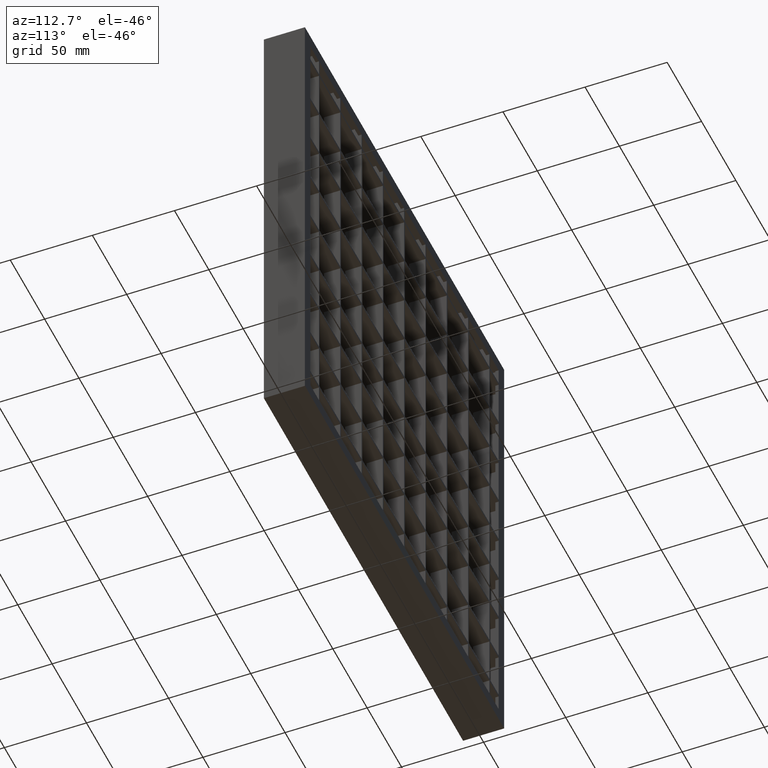
[diagram: clean part render]
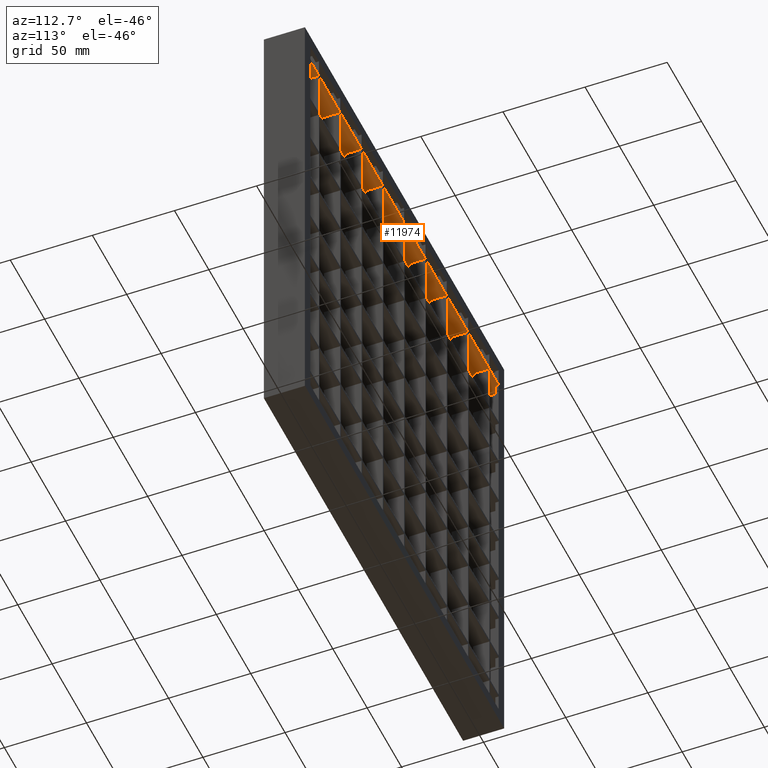
[diagram: same view with one face highlighted and labeled with its STEP entity id]
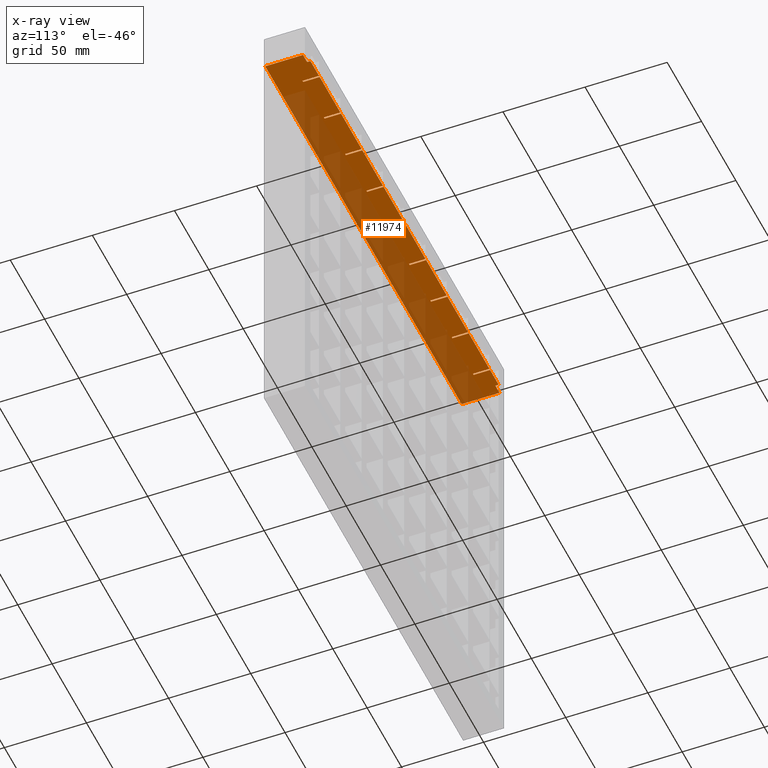
[diagram: x-ray of the same camera — body ghosted, the highlighted face saturated]
A machine part, auxiliary view. The second image highlights one B-rep face of the part: STEP entity #11974.
The next image is the same camera in x-ray: the body ghosted, the highlighted face saturated — about 51% of this face is hidden behind the body in this view.
In plain terms, the highlighted planar face has unit normal (0, 0, -1).
Its self-contained STEP definition (entity closure, byte-faithful):
#117 = VERTEX_POINT ( 'NONE', #4913 ) ;
#144 = EDGE_CURVE ( 'NONE', #7752, #800, #14673, .T. ) ;
#268 = VECTOR ( 'NONE', #5159, 1000.000000000000000 ) ;
#314 = VECTOR ( 'NONE', #2611, 1000.000000000000000 ) ;
#354 = CARTESIAN_POINT ( 'NONE',  ( 282.0000000000000600, 10.50000000000019200, -19.75000000000037700 ) ) ;
#358 = LINE ( 'NONE', #5284, #9730 ) ;
#437 = DIRECTION ( 'NONE',  ( -1.000000000000000000, -4.336808689942014300E-016, 0.0000000000000000000 ) ) ;
#465 = EDGE_CURVE ( 'NONE', #6913, #5337, #5865, .T. ) ;
#579 = CARTESIAN_POINT ( 'NONE',  ( 313.0449595727364500, 2.500000000000128800, -19.75000000000037700 ) ) ;
#600 = CARTESIAN_POINT ( 'NONE',  ( 51.49999999999996400, 2.500000000000001800, -19.75000000000037700 ) ) ;
#608 = EDGE_CURVE ( 'NONE', #13409, #4346, #4748, .T. ) ;
#660 = VERTEX_POINT ( 'NONE', #15419 ) ;
#662 = DIRECTION ( 'NONE',  ( 8.673617379884037400E-016, 1.000000000000000000, 0.0000000000000000000 ) ) ;
#721 = CARTESIAN_POINT ( 'NONE',  ( 238.5000000000001700, -12.49999999999987700, -19.75000000000037700 ) ) ;
#736 = EDGE_CURVE ( 'NONE', #4158, #878, #8657, .T. ) ;
#800 = VERTEX_POINT ( 'NONE', #3779 ) ;
#824 = CARTESIAN_POINT ( 'NONE',  ( 313.0449595727364500, 12.50000000000012400, -19.75000000000037700 ) ) ;
#878 = VERTEX_POINT ( 'NONE', #6270 ) ;
#949 = CARTESIAN_POINT ( 'NONE',  ( 114.4999999999999600, 2.500000000000002200, -19.75000000000037700 ) ) ;
#964 = DIRECTION ( 'NONE',  ( -1.000000000000000000, 0.0000000000000000000, 0.0000000000000000000 ) ) ;
#990 = CARTESIAN_POINT ( 'NONE',  ( 288.0000000000001100, -12.49999999999987700, -19.75000000000037700 ) ) ;
#1012 = DIRECTION ( 'NONE',  ( 1.000000000000000000, -4.336808689942014300E-016, 0.0000000000000000000 ) ) ;
#1013 = PLANE ( 'NONE',  #1985 ) ;
#1043 = VECTOR ( 'NONE', #2432, 1000.000000000000000 ) ;
#1047 = EDGE_CURVE ( 'NONE', #11251, #9433, #7549, .T. ) ;
#1114 = CARTESIAN_POINT ( 'NONE',  ( 113.4999999999999600, -12.49999999999987700, -19.75000000000037700 ) ) ;
#1120 = DIRECTION ( 'NONE',  ( 1.000000000000000000, 0.0000000000000000000, 0.0000000000000000000 ) ) ;
#1131 = CARTESIAN_POINT ( 'NONE',  ( 268.5000000000001100, 12.50000000000000200, -19.75000000000037700 ) ) ;
#1141 = EDGE_CURVE ( 'NONE', #2159, #3115, #9804, .T. ) ;
#1147 = VECTOR ( 'NONE', #11560, 1000.000000000000000 ) ;
#1157 = ORIENTED_EDGE ( 'NONE', *, *, #1141, .F. ) ;
#1218 = VECTOR ( 'NONE', #14302, 1000.000000000000000 ) ;
#1266 = CARTESIAN_POINT ( 'NONE',  ( 21.49999999999996400, 2.500000000000002200, -19.75000000000037700 ) ) ;
#1283 = EDGE_CURVE ( 'NONE', #12223, #8841, #11441, .T. ) ;
#1296 = DIRECTION ( 'NONE',  ( -1.000000000000000000, -3.061616997868382600E-016, 0.0000000000000000000 ) ) ;
#1353 = CARTESIAN_POINT ( 'NONE',  ( 176.5000000000001100, -12.49999999999987700, -19.75000000000037700 ) ) ;
#1384 = VECTOR ( 'NONE', #662, 1000.000000000000000 ) ;
#1471 = VECTOR ( 'NONE', #10621, 1000.000000000000000 ) ;
#1563 = LINE ( 'NONE', #15091, #15233 ) ;
#1638 = CARTESIAN_POINT ( 'NONE',  ( 206.5000000000001100, 12.50000000000000200, -19.75000000000037700 ) ) ;
#1642 = EDGE_CURVE ( 'NONE', #11677, #5337, #12729, .T. ) ;
#1646 = LINE ( 'NONE', #1353, #13963 ) ;
#1751 = VERTEX_POINT ( 'NONE', #11565 ) ;
#1777 = VERTEX_POINT ( 'NONE', #12759 ) ;
#1806 = EDGE_CURVE ( 'NONE', #11020, #9661, #11615, .T. ) ;
#1819 = CARTESIAN_POINT ( 'NONE',  ( 313.0449595727364500, 2.499999999999943200, -19.75000000000037700 ) ) ;
#1845 = CARTESIAN_POINT ( 'NONE',  ( 52.49999999999993600, -12.49999999999987700, -19.75000000000037700 ) ) ;
#1951 = VECTOR ( 'NONE', #10703, 1000.000000000000000 ) ;
#1985 = AXIS2_PLACEMENT_3D ( 'NONE', #12951, #15408, #964 ) ;
#2009 = EDGE_CURVE ( 'NONE', #660, #12414, #11229, .T. ) ;
#2072 = EDGE_CURVE ( 'NONE', #4158, #10353, #2836, .T. ) ;
#2075 = LINE ( 'NONE', #11765, #1147 ) ;
#2159 = VERTEX_POINT ( 'NONE', #14833 ) ;
#2176 = EDGE_CURVE ( 'NONE', #4687, #7655, #7139, .T. ) ;
#2297 = ORIENTED_EDGE ( 'NONE', *, *, #8954, .F. ) ;
#2387 = CARTESIAN_POINT ( 'NONE',  ( 2.000000000000002700, 10.50000000000000500, -19.75000000000037700 ) ) ;
#2432 = DIRECTION ( 'NONE',  ( 0.0000000000000000000, 1.000000000000000000, 0.0000000000000000000 ) ) ;
#2478 = VECTOR ( 'NONE', #15482, 1000.000000000000000 ) ;
#2538 = ORIENTED_EDGE ( 'NONE', *, *, #1806, .T. ) ;
#2611 = DIRECTION ( 'NONE',  ( 0.0000000000000000000, -1.000000000000000000, 0.0000000000000000000 ) ) ;
#2620 = CARTESIAN_POINT ( 'NONE',  ( 82.49999999999995700, 12.50000000000005300, -19.75000000000037700 ) ) ;
#2676 = ORIENTED_EDGE ( 'NONE', *, *, #3113, .T. ) ;
#2728 = CARTESIAN_POINT ( 'NONE',  ( 52.49999999999996400, 2.500000000000002200, -19.75000000000037700 ) ) ;
#2750 = ORIENTED_EDGE ( 'NONE', *, *, #10348, .F. ) ;
#2793 = CARTESIAN_POINT ( 'NONE',  ( 268.5000000000001100, -12.49999999999987700, -19.75000000000037700 ) ) ;
#2835 = ORIENTED_EDGE ( 'NONE', *, *, #10799, .T. ) ;
#2836 = LINE ( 'NONE', #3807, #13670 ) ;
#2980 = CARTESIAN_POINT ( 'NONE',  ( 144.4999999999999700, 2.500000000000001800, -19.75000000000037700 ) ) ;
#3045 = ORIENTED_EDGE ( 'NONE', *, *, #10994, .T. ) ;
#3085 = VECTOR ( 'NONE', #13038, 1000.000000000000000 ) ;
#3099 = ORIENTED_EDGE ( 'NONE', *, *, #14602, .F. ) ;
#3113 = EDGE_CURVE ( 'NONE', #11677, #3155, #5278, .T. ) ;
#3115 = VERTEX_POINT ( 'NONE', #2980 ) ;
#3137 = DIRECTION ( 'NONE',  ( -1.000000000000000000, -4.336808689942014300E-016, 0.0000000000000000000 ) ) ;
#3138 = DIRECTION ( 'NONE',  ( -1.000000000000000000, -3.061616997868382600E-016, 0.0000000000000000000 ) ) ;
#3155 = VERTEX_POINT ( 'NONE', #5223 ) ;
#3262 = CARTESIAN_POINT ( 'NONE',  ( 313.0449595727364500, 2.499999999999983100, -19.75000000000037700 ) ) ;
#3271 = DIRECTION ( 'NONE',  ( -1.000000000000000000, -3.061616997868382600E-016, 0.0000000000000000000 ) ) ;
#3508 = EDGE_CURVE ( 'NONE', #8399, #4687, #9389, .T. ) ;
#3560 = CARTESIAN_POINT ( 'NONE',  ( 83.49999999999995700, 2.500000000000002200, -19.75000000000037700 ) ) ;
#3568 = EDGE_CURVE ( 'NONE', #8841, #12794, #2075, .T. ) ;
#3779 = CARTESIAN_POINT ( 'NONE',  ( 113.4999999999999600, 2.500000000000001800, -19.75000000000037700 ) ) ;
#3807 = CARTESIAN_POINT ( 'NONE',  ( 313.0449595727364500, 12.50000000000012400, -19.75000000000037700 ) ) ;
#3856 = ORIENTED_EDGE ( 'NONE', *, *, #11881, .T. ) ;
#3900 = ORIENTED_EDGE ( 'NONE', *, *, #4167, .T. ) ;
#4046 = LINE ( 'NONE', #4968, #4971 ) ;
#4098 = CARTESIAN_POINT ( 'NONE',  ( 313.0449595727364500, -12.49999999999987700, -19.75000000000037700 ) ) ;
#4128 = CARTESIAN_POINT ( 'NONE',  ( 145.0000000000000600, 10.50000000000000500, -19.75000000000037700 ) ) ;
#4132 = CARTESIAN_POINT ( 'NONE',  ( 206.5000000000001100, -12.49999999999987700, -19.75000000000037700 ) ) ;
#4148 = CARTESIAN_POINT ( 'NONE',  ( 207.5000000000001400, 2.500000000000001800, -19.75000000000037700 ) ) ;
#4158 = VERTEX_POINT ( 'NONE', #11442 ) ;
#4167 = EDGE_CURVE ( 'NONE', #15188, #11020, #13644, .T. ) ;
#4174 = ORIENTED_EDGE ( 'NONE', *, *, #7088, .T. ) ;
#4195 = CARTESIAN_POINT ( 'NONE',  ( 313.0449595727364500, 12.50000000000012400, -19.75000000000037700 ) ) ;
#4327 = VECTOR ( 'NONE', #15210, 1000.000000000000000 ) ;
#4346 = VERTEX_POINT ( 'NONE', #5754 ) ;
#4400 = ORIENTED_EDGE ( 'NONE', *, *, #6546, .F. ) ;
#4463 = LINE ( 'NONE', #11697, #1471 ) ;
#4569 = ORIENTED_EDGE ( 'NONE', *, *, #12433, .F. ) ;
#4676 = ORIENTED_EDGE ( 'NONE', *, *, #9530, .F. ) ;
#4687 = VERTEX_POINT ( 'NONE', #2620 ) ;
#4711 = LINE ( 'NONE', #5289, #10137 ) ;
#4748 = LINE ( 'NONE', #10267, #1384 ) ;
#4765 = ORIENTED_EDGE ( 'NONE', *, *, #6843, .F. ) ;
#4801 = LINE ( 'NONE', #1114, #1043 ) ;
#4913 = CARTESIAN_POINT ( 'NONE',  ( 21.49999999999996400, 12.50000000000000200, -19.75000000000037700 ) ) ;
#4968 = CARTESIAN_POINT ( 'NONE',  ( 313.0449595727364500, 12.50000000000012400, -19.75000000000037700 ) ) ;
#4971 = VECTOR ( 'NONE', #13095, 1000.000000000000000 ) ;
#4991 = EDGE_CURVE ( 'NONE', #6349, #1777, #1646, .T. ) ;
#5159 = DIRECTION ( 'NONE',  ( 0.0000000000000000000, 1.000000000000000000, 0.0000000000000000000 ) ) ;
#5223 = CARTESIAN_POINT ( 'NONE',  ( 2.000000000000002700, -12.50000000000000000, -19.75000000000040500 ) ) ;
#5278 = LINE ( 'NONE', #4098, #12169 ) ;
#5284 = CARTESIAN_POINT ( 'NONE',  ( 2.000000000000002700, -12.50000000000000000, -19.75000000000037700 ) ) ;
#5289 = CARTESIAN_POINT ( 'NONE',  ( 20.49999999999996400, -12.49999999999987700, -19.75000000000037700 ) ) ;
#5327 = VECTOR ( 'NONE', #3138, 1000.000000000000000 ) ;
#5337 = VERTEX_POINT ( 'NONE', #9031 ) ;
#5367 = DIRECTION ( 'NONE',  ( -1.000000000000000000, -3.061616997868382600E-016, 0.0000000000000000000 ) ) ;
#5372 = EDGE_CURVE ( 'NONE', #6009, #14055, #13930, .T. ) ;
#5457 = VERTEX_POINT ( 'NONE', #5731 ) ;
#5487 = CARTESIAN_POINT ( 'NONE',  ( 313.0449595727364500, 2.500000000000075100, -19.75000000000037700 ) ) ;
#5731 = CARTESIAN_POINT ( 'NONE',  ( 269.5000000000001100, 2.500000000000001800, -19.75000000000037700 ) ) ;
#5754 = CARTESIAN_POINT ( 'NONE',  ( 7.999999999999994700, 12.50000000000000500, -19.75000000000049000 ) ) ;
#5775 = CARTESIAN_POINT ( 'NONE',  ( 313.0449595727364500, 12.50000000000012400, -19.75000000000037700 ) ) ;
#5797 = CARTESIAN_POINT ( 'NONE',  ( 282.0000000000000600, 10.50000000000000500, -19.75000000000037700 ) ) ;
#5865 = LINE ( 'NONE', #4128, #10169 ) ;
#6009 = VERTEX_POINT ( 'NONE', #7907 ) ;
#6016 = VECTOR ( 'NONE', #8675, 1000.000000000000000 ) ;
#6063 = VERTEX_POINT ( 'NONE', #10209 ) ;
#6153 = DIRECTION ( 'NONE',  ( 0.0000000000000000000, 1.000000000000000000, 0.0000000000000000000 ) ) ;
#6191 = EDGE_CURVE ( 'NONE', #6063, #5457, #11134, .T. ) ;
#6214 = EDGE_CURVE ( 'NONE', #800, #12785, #4801, .T. ) ;
#6270 = CARTESIAN_POINT ( 'NONE',  ( 175.5000000000001100, 2.500000000000002200, -19.75000000000037700 ) ) ;
#6349 = VERTEX_POINT ( 'NONE', #12054 ) ;
#6380 = LINE ( 'NONE', #354, #6016 ) ;
#6447 = LINE ( 'NONE', #824, #5327 ) ;
#6476 = CARTESIAN_POINT ( 'NONE',  ( 2.000000000000002700, 10.50000000000000500, -19.75000000000040500 ) ) ;
#6546 = EDGE_CURVE ( 'NONE', #7811, #11972, #7763, .T. ) ;
#6548 = VERTEX_POINT ( 'NONE', #6476 ) ;
#6640 = EDGE_CURVE ( 'NONE', #13379, #9661, #6447, .T. ) ;
#6754 = VECTOR ( 'NONE', #10245, 1000.000000000000000 ) ;
#6843 = EDGE_CURVE ( 'NONE', #1751, #12452, #13545, .T. ) ;
#6852 = DIRECTION ( 'NONE',  ( 1.000000000000000000, -4.336808689942014300E-016, 0.0000000000000000000 ) ) ;
#6913 = VERTEX_POINT ( 'NONE', #5797 ) ;
#6920 = CARTESIAN_POINT ( 'NONE',  ( 175.5000000000001100, -12.49999999999987700, -19.75000000000037700 ) ) ;
#6972 = LINE ( 'NONE', #5775, #9232 ) ;
#6992 = CARTESIAN_POINT ( 'NONE',  ( 313.0449595727364500, 12.50000000000012400, -19.75000000000037700 ) ) ;
#7016 = CARTESIAN_POINT ( 'NONE',  ( 20.49999999999996400, 2.500000000000001800, -19.75000000000037700 ) ) ;
#7019 = CARTESIAN_POINT ( 'NONE',  ( 238.5000000000001700, 2.500000000000001800, -19.75000000000037700 ) ) ;
#7088 = EDGE_CURVE ( 'NONE', #5457, #9433, #11278, .T. ) ;
#7109 = CARTESIAN_POINT ( 'NONE',  ( 237.5000000000001400, -12.49999999999987700, -19.75000000000037700 ) ) ;
#7139 = LINE ( 'NONE', #7456, #11598 ) ;
#7146 = ORIENTED_EDGE ( 'NONE', *, *, #11433, .F. ) ;
#7237 = LINE ( 'NONE', #11155, #314 ) ;
#7248 = EDGE_CURVE ( 'NONE', #878, #6349, #12565, .T. ) ;
#7281 = CARTESIAN_POINT ( 'NONE',  ( 20.49999999999996400, 12.50000000000003400, -19.75000000000037700 ) ) ;
#7358 = ORIENTED_EDGE ( 'NONE', *, *, #1283, .F. ) ;
#7452 = ORIENTED_EDGE ( 'NONE', *, *, #144, .F. ) ;
#7456 = CARTESIAN_POINT ( 'NONE',  ( 313.0449595727364500, 12.50000000000012400, -19.75000000000037700 ) ) ;
#7513 = ORIENTED_EDGE ( 'NONE', *, *, #6214, .F. ) ;
#7521 = LINE ( 'NONE', #1845, #6754 ) ;
#7532 = CARTESIAN_POINT ( 'NONE',  ( 21.49999999999996400, -12.49999999999987700, -19.75000000000037700 ) ) ;
#7549 = LINE ( 'NONE', #9097, #7750 ) ;
#7653 = DIRECTION ( 'NONE',  ( 0.0000000000000000000, 1.000000000000000000, 0.0000000000000000000 ) ) ;
#7655 = VERTEX_POINT ( 'NONE', #9376 ) ;
#7659 = ORIENTED_EDGE ( 'NONE', *, *, #1642, .F. ) ;
#7672 = DIRECTION ( 'NONE',  ( 1.000000000000000000, -4.336808689942014300E-016, 0.0000000000000000000 ) ) ;
#7750 = VECTOR ( 'NONE', #15168, 1000.000000000000000 ) ;
#7752 = VERTEX_POINT ( 'NONE', #949 ) ;
#7763 = LINE ( 'NONE', #579, #12968 ) ;
#7805 = EDGE_CURVE ( 'NONE', #6009, #15188, #11249, .T. ) ;
#7811 = VERTEX_POINT ( 'NONE', #1266 ) ;
#7907 = CARTESIAN_POINT ( 'NONE',  ( 237.5000000000001400, 12.50000000000000200, -19.75000000000037700 ) ) ;
#7934 = ORIENTED_EDGE ( 'NONE', *, *, #10306, .F. ) ;
#7959 = EDGE_CURVE ( 'NONE', #11251, #6913, #6380, .T. ) ;
#7971 = VECTOR ( 'NONE', #6852, 1000.000000000000000 ) ;
#8042 = DIRECTION ( 'NONE',  ( 0.0000000000000000000, 1.000000000000000000, 0.0000000000000000000 ) ) ;
#8072 = DIRECTION ( 'NONE',  ( 0.0000000000000000000, -1.000000000000000000, 0.0000000000000000000 ) ) ;
#8231 = VECTOR ( 'NONE', #1012, 1000.000000000000000 ) ;
#8268 = LINE ( 'NONE', #11231, #13678 ) ;
#8358 = EDGE_CURVE ( 'NONE', #12452, #7752, #12958, .T. ) ;
#8399 = VERTEX_POINT ( 'NONE', #9463 ) ;
#8475 = ORIENTED_EDGE ( 'NONE', *, *, #1047, .F. ) ;
#8657 = LINE ( 'NONE', #6920, #10160 ) ;
#8675 = DIRECTION ( 'NONE',  ( 8.673617379884035500E-016, -1.000000000000000000, 0.0000000000000000000 ) ) ;
#8705 = EDGE_LOOP ( 'NONE', ( #12728, #4174, #8475, #14516, #15004, #7659, #2676, #14947, #3045, #12604, #2297, #2750, #4400, #3099, #13851, #9075, #7358, #4676, #10644, #11929, #7934, #10929, #4569, #7513, #7452, #13313, #4765, #15545, #1157, #14108, #11914, #10827, #12864, #12250, #7146, #3856, #9934, #9815, #13426, #14944, #3900, #2538, #13370, #2835 ) ) ;
#8771 = DIRECTION ( 'NONE',  ( 1.000000000000000000, 0.0000000000000000000, 0.0000000000000000000 ) ) ;
#8841 = VERTEX_POINT ( 'NONE', #600 ) ;
#8844 = VERTEX_POINT ( 'NONE', #8979 ) ;
#8853 = DIRECTION ( 'NONE',  ( 0.0000000000000000000, 1.000000000000000000, 0.0000000000000000000 ) ) ;
#8855 = VECTOR ( 'NONE', #11955, 1000.000000000000000 ) ;
#8883 = EDGE_CURVE ( 'NONE', #8844, #15139, #1563, .T. ) ;
#8954 = EDGE_CURVE ( 'NONE', #10166, #4346, #6972, .T. ) ;
#8979 = CARTESIAN_POINT ( 'NONE',  ( 83.49999999999995700, 12.50000000000000200, -19.75000000000037700 ) ) ;
#9003 = LINE ( 'NONE', #2387, #11034 ) ;
#9031 = CARTESIAN_POINT ( 'NONE',  ( 288.0000000000000600, 10.50000000000000500, -19.75000000000037700 ) ) ;
#9075 = ORIENTED_EDGE ( 'NONE', *, *, #3568, .F. ) ;
#9097 = CARTESIAN_POINT ( 'NONE',  ( 313.0449595727364500, 12.50000000000012400, -19.75000000000037700 ) ) ;
#9102 = LINE ( 'NONE', #7532, #14529 ) ;
#9133 = VECTOR ( 'NONE', #10082, 1000.000000000000000 ) ;
#9232 = VECTOR ( 'NONE', #3271, 1000.000000000000000 ) ;
#9339 = VERTEX_POINT ( 'NONE', #1638 ) ;
#9376 = CARTESIAN_POINT ( 'NONE',  ( 52.49999999999996400, 12.50000000000000200, -19.75000000000037700 ) ) ;
#9389 = LINE ( 'NONE', #11660, #4327 ) ;
#9433 = VERTEX_POINT ( 'NONE', #9895 ) ;
#9449 = CARTESIAN_POINT ( 'NONE',  ( 7.999999999999992900, 10.50000000000000500, -19.75000000000040500 ) ) ;
#9463 = CARTESIAN_POINT ( 'NONE',  ( 82.49999999999995700, 2.500000000000001800, -19.75000000000037700 ) ) ;
#9530 = EDGE_CURVE ( 'NONE', #7655, #12223, #7521, .T. ) ;
#9661 = VERTEX_POINT ( 'NONE', #13291 ) ;
#9692 = LINE ( 'NONE', #4195, #9867 ) ;
#9716 = CARTESIAN_POINT ( 'NONE',  ( 51.49999999999993600, 12.50000000000004400, -19.75000000000037700 ) ) ;
#9719 = DIRECTION ( 'NONE',  ( 0.0000000000000000000, 1.000000000000000000, 0.0000000000000000000 ) ) ;
#9730 = VECTOR ( 'NONE', #8853, 1000.000000000000000 ) ;
#9804 = LINE ( 'NONE', #5487, #14281 ) ;
#9815 = ORIENTED_EDGE ( 'NONE', *, *, #14222, .T. ) ;
#9843 = DIRECTION ( 'NONE',  ( 0.0000000000000000000, -1.000000000000000000, 0.0000000000000000000 ) ) ;
#9867 = VECTOR ( 'NONE', #9986, 1000.000000000000000 ) ;
#9895 = CARTESIAN_POINT ( 'NONE',  ( 269.5000000000001100, 12.50000000000000200, -19.75000000000037700 ) ) ;
#9934 = ORIENTED_EDGE ( 'NONE', *, *, #2009, .T. ) ;
#9961 = VECTOR ( 'NONE', #10543, 1000.000000000000000 ) ;
#9984 = DIRECTION ( 'NONE',  ( -1.000000000000000000, -4.336808689942014300E-016, 0.0000000000000000000 ) ) ;
#9986 = DIRECTION ( 'NONE',  ( -1.000000000000000000, -3.061616997868382600E-016, 0.0000000000000000000 ) ) ;
#10060 = LINE ( 'NONE', #4132, #9133 ) ;
#10070 = DIRECTION ( 'NONE',  ( 0.0000000000000000000, -1.000000000000000000, 0.0000000000000000000 ) ) ;
#10082 = DIRECTION ( 'NONE',  ( 0.0000000000000000000, -1.000000000000000000, 0.0000000000000000000 ) ) ;
#10137 = VECTOR ( 'NONE', #7653, 1000.000000000000000 ) ;
#10160 = VECTOR ( 'NONE', #10684, 1000.000000000000000 ) ;
#10166 = VERTEX_POINT ( 'NONE', #7281 ) ;
#10169 = VECTOR ( 'NONE', #8771, 1000.000000000000000 ) ;
#10209 = CARTESIAN_POINT ( 'NONE',  ( 268.5000000000001100, 2.500000000000002200, -19.75000000000037700 ) ) ;
#10245 = DIRECTION ( 'NONE',  ( 0.0000000000000000000, -1.000000000000000000, 0.0000000000000000000 ) ) ;
#10267 = CARTESIAN_POINT ( 'NONE',  ( 7.999999999999992900, 10.50000000000000500, -19.75000000000037700 ) ) ;
#10306 = EDGE_CURVE ( 'NONE', #15139, #8399, #8268, .T. ) ;
#10348 = EDGE_CURVE ( 'NONE', #11972, #10166, #4711, .T. ) ;
#10353 = VERTEX_POINT ( 'NONE', #12368 ) ;
#10414 = VECTOR ( 'NONE', #6153, 1000.000000000000000 ) ;
#10543 = DIRECTION ( 'NONE',  ( 0.0000000000000000000, 1.000000000000000000, 0.0000000000000000000 ) ) ;
#10593 = CARTESIAN_POINT ( 'NONE',  ( 114.4999999999999600, -12.49999999999987700, -19.75000000000037700 ) ) ;
#10621 = DIRECTION ( 'NONE',  ( 0.0000000000000000000, 1.000000000000000000, 0.0000000000000000000 ) ) ;
#10644 = ORIENTED_EDGE ( 'NONE', *, *, #2176, .F. ) ;
#10684 = DIRECTION ( 'NONE',  ( 0.0000000000000000000, -1.000000000000000000, 0.0000000000000000000 ) ) ;
#10703 = DIRECTION ( 'NONE',  ( -1.000000000000000000, -4.336808689942014300E-016, 0.0000000000000000000 ) ) ;
#10799 = EDGE_CURVE ( 'NONE', #13379, #6063, #15170, .T. ) ;
#10827 = ORIENTED_EDGE ( 'NONE', *, *, #736, .T. ) ;
#10857 = CARTESIAN_POINT ( 'NONE',  ( 313.0449595727364500, 2.500000000000088800, -19.75000000000037700 ) ) ;
#10866 = CARTESIAN_POINT ( 'NONE',  ( 288.0000000000001100, -12.50000000000000000, -19.75000000000037700 ) ) ;
#10915 = CARTESIAN_POINT ( 'NONE',  ( 237.5000000000001400, 2.500000000000002200, -19.75000000000037700 ) ) ;
#10929 = ORIENTED_EDGE ( 'NONE', *, *, #8883, .F. ) ;
#10994 = EDGE_CURVE ( 'NONE', #6548, #13409, #9003, .T. ) ;
#11020 = VERTEX_POINT ( 'NONE', #7019 ) ;
#11034 = VECTOR ( 'NONE', #1120, 1000.000000000000000 ) ;
#11087 = VECTOR ( 'NONE', #7672, 1000.000000000000000 ) ;
#11134 = LINE ( 'NONE', #3262, #7971 ) ;
#11155 = CARTESIAN_POINT ( 'NONE',  ( 145.4999999999999700, -12.49999999999987700, -19.75000000000037700 ) ) ;
#11182 = DIRECTION ( 'NONE',  ( -1.000000000000000000, -4.336808689942014300E-016, 0.0000000000000000000 ) ) ;
#11213 = EDGE_CURVE ( 'NONE', #3155, #6548, #358, .T. ) ;
#11229 = LINE ( 'NONE', #12923, #2478 ) ;
#11231 = CARTESIAN_POINT ( 'NONE',  ( 313.0449595727364500, 2.500000000000101300, -19.75000000000037700 ) ) ;
#11249 = LINE ( 'NONE', #7109, #8855 ) ;
#11251 = VERTEX_POINT ( 'NONE', #13691 ) ;
#11278 = LINE ( 'NONE', #14786, #268 ) ;
#11319 = VECTOR ( 'NONE', #5367, 1000.000000000000000 ) ;
#11433 = EDGE_CURVE ( 'NONE', #9339, #1777, #15346, .T. ) ;
#11441 = LINE ( 'NONE', #14774, #15029 ) ;
#11442 = CARTESIAN_POINT ( 'NONE',  ( 175.5000000000001100, 12.50000000000000200, -19.75000000000037700 ) ) ;
#11492 = CARTESIAN_POINT ( 'NONE',  ( 313.0449595727364500, 2.499999999999969400, -19.75000000000037700 ) ) ;
#11560 = DIRECTION ( 'NONE',  ( 0.0000000000000000000, 1.000000000000000000, 0.0000000000000000000 ) ) ;
#11565 = CARTESIAN_POINT ( 'NONE',  ( 144.4999999999999700, 12.50000000000007100, -19.75000000000037700 ) ) ;
#11598 = VECTOR ( 'NONE', #13613, 1000.000000000000000 ) ;
#11615 = LINE ( 'NONE', #721, #12362 ) ;
#11660 = CARTESIAN_POINT ( 'NONE',  ( 82.49999999999995700, -12.49999999999987700, -19.75000000000037700 ) ) ;
#11677 = VERTEX_POINT ( 'NONE', #10866 ) ;
#11697 = CARTESIAN_POINT ( 'NONE',  ( 144.4999999999999700, -12.49999999999987700, -19.75000000000037700 ) ) ;
#11765 = CARTESIAN_POINT ( 'NONE',  ( 51.49999999999993600, -12.49999999999987700, -19.75000000000037700 ) ) ;
#11881 = EDGE_CURVE ( 'NONE', #9339, #660, #10060, .T. ) ;
#11914 = ORIENTED_EDGE ( 'NONE', *, *, #2072, .F. ) ;
#11929 = ORIENTED_EDGE ( 'NONE', *, *, #3508, .F. ) ;
#11955 = DIRECTION ( 'NONE',  ( 0.0000000000000000000, -1.000000000000000000, 0.0000000000000000000 ) ) ;
#11972 = VERTEX_POINT ( 'NONE', #7016 ) ;
#11974 = ADVANCED_FACE ( 'NONE', ( #12274 ), #1013, .T. ) ;
#12024 = EDGE_CURVE ( 'NONE', #3115, #1751, #4463, .T. ) ;
#12054 = CARTESIAN_POINT ( 'NONE',  ( 176.5000000000001100, 2.500000000000001800, -19.75000000000037700 ) ) ;
#12169 = VECTOR ( 'NONE', #13680, 1000.000000000000000 ) ;
#12223 = VERTEX_POINT ( 'NONE', #2728 ) ;
#12250 = ORIENTED_EDGE ( 'NONE', *, *, #4991, .T. ) ;
#12274 = FACE_OUTER_BOUND ( 'NONE', #8705, .T. ) ;
#12362 = VECTOR ( 'NONE', #8042, 1000.000000000000000 ) ;
#12368 = CARTESIAN_POINT ( 'NONE',  ( 145.4999999999999700, 12.50000000000000200, -19.75000000000037700 ) ) ;
#12414 = VERTEX_POINT ( 'NONE', #4148 ) ;
#12433 = EDGE_CURVE ( 'NONE', #12785, #8844, #9692, .T. ) ;
#12452 = VERTEX_POINT ( 'NONE', #14864 ) ;
#12565 = LINE ( 'NONE', #1819, #11087 ) ;
#12591 = CARTESIAN_POINT ( 'NONE',  ( 313.0449595727364500, 12.50000000000012400, -19.75000000000037700 ) ) ;
#12604 = ORIENTED_EDGE ( 'NONE', *, *, #608, .T. ) ;
#12728 = ORIENTED_EDGE ( 'NONE', *, *, #6191, .T. ) ;
#12729 = LINE ( 'NONE', #990, #9961 ) ;
#12759 = CARTESIAN_POINT ( 'NONE',  ( 176.5000000000001100, 12.50000000000000200, -19.75000000000037700 ) ) ;
#12785 = VERTEX_POINT ( 'NONE', #14412 ) ;
#12794 = VERTEX_POINT ( 'NONE', #9716 ) ;
#12864 = ORIENTED_EDGE ( 'NONE', *, *, #7248, .T. ) ;
#12923 = CARTESIAN_POINT ( 'NONE',  ( 313.0449595727364500, 2.499999999999955600, -19.75000000000037700 ) ) ;
#12951 = CARTESIAN_POINT ( 'NONE',  ( 313.0449595727364500, -12.49999999999987700, -19.75000000000037700 ) ) ;
#12958 = LINE ( 'NONE', #10593, #1218 ) ;
#12968 = VECTOR ( 'NONE', #9984, 1000.000000000000000 ) ;
#13038 = DIRECTION ( 'NONE',  ( -1.000000000000000000, -3.061616997868382600E-016, 0.0000000000000000000 ) ) ;
#13095 = DIRECTION ( 'NONE',  ( -1.000000000000000000, -3.061616997868382600E-016, 0.0000000000000000000 ) ) ;
#13291 = CARTESIAN_POINT ( 'NONE',  ( 238.5000000000001700, 12.50000000000000200, -19.75000000000037700 ) ) ;
#13313 = ORIENTED_EDGE ( 'NONE', *, *, #8358, .F. ) ;
#13370 = ORIENTED_EDGE ( 'NONE', *, *, #6640, .F. ) ;
#13379 = VERTEX_POINT ( 'NONE', #1131 ) ;
#13409 = VERTEX_POINT ( 'NONE', #9449 ) ;
#13426 = ORIENTED_EDGE ( 'NONE', *, *, #5372, .F. ) ;
#13458 = CARTESIAN_POINT ( 'NONE',  ( 207.5000000000001400, -12.49999999999987700, -19.75000000000037700 ) ) ;
#13545 = LINE ( 'NONE', #6992, #3085 ) ;
#13613 = DIRECTION ( 'NONE',  ( -1.000000000000000000, -3.061616997868382600E-016, 0.0000000000000000000 ) ) ;
#13644 = LINE ( 'NONE', #11492, #8231 ) ;
#13649 = VECTOR ( 'NONE', #8072, 1000.000000000000000 ) ;
#13670 = VECTOR ( 'NONE', #1296, 1000.000000000000000 ) ;
#13678 = VECTOR ( 'NONE', #11182, 1000.000000000000000 ) ;
#13680 = DIRECTION ( 'NONE',  ( -1.000000000000000000, -3.061616997868382600E-016, 0.0000000000000000000 ) ) ;
#13691 = CARTESIAN_POINT ( 'NONE',  ( 282.0000000000001700, 12.50000000000000700, -19.75000000000037700 ) ) ;
#13742 = DIRECTION ( 'NONE',  ( -1.000000000000000000, -3.061616997868382600E-016, 0.0000000000000000000 ) ) ;
#13851 = ORIENTED_EDGE ( 'NONE', *, *, #15119, .F. ) ;
#13930 = LINE ( 'NONE', #12591, #11319 ) ;
#13963 = VECTOR ( 'NONE', #9719, 1000.000000000000000 ) ;
#13996 = VECTOR ( 'NONE', #13742, 1000.000000000000000 ) ;
#14055 = VERTEX_POINT ( 'NONE', #14463 ) ;
#14108 = ORIENTED_EDGE ( 'NONE', *, *, #14242, .F. ) ;
#14222 = EDGE_CURVE ( 'NONE', #12414, #14055, #14916, .T. ) ;
#14242 = EDGE_CURVE ( 'NONE', #10353, #2159, #7237, .T. ) ;
#14281 = VECTOR ( 'NONE', #3137, 1000.000000000000000 ) ;
#14302 = DIRECTION ( 'NONE',  ( 0.0000000000000000000, -1.000000000000000000, 0.0000000000000000000 ) ) ;
#14412 = CARTESIAN_POINT ( 'NONE',  ( 113.4999999999999600, 12.50000000000006400, -19.75000000000037700 ) ) ;
#14463 = CARTESIAN_POINT ( 'NONE',  ( 207.5000000000001400, 12.50000000000000200, -19.75000000000037700 ) ) ;
#14516 = ORIENTED_EDGE ( 'NONE', *, *, #7959, .T. ) ;
#14529 = VECTOR ( 'NONE', #9843, 1000.000000000000000 ) ;
#14602 = EDGE_CURVE ( 'NONE', #117, #7811, #9102, .T. ) ;
#14673 = LINE ( 'NONE', #10857, #1951 ) ;
#14774 = CARTESIAN_POINT ( 'NONE',  ( 313.0449595727364500, 2.500000000000115000, -19.75000000000037700 ) ) ;
#14786 = CARTESIAN_POINT ( 'NONE',  ( 269.5000000000001100, -12.49999999999987700, -19.75000000000037700 ) ) ;
#14833 = CARTESIAN_POINT ( 'NONE',  ( 145.4999999999999700, 2.500000000000002200, -19.75000000000037700 ) ) ;
#14864 = CARTESIAN_POINT ( 'NONE',  ( 114.4999999999999600, 12.50000000000000200, -19.75000000000037700 ) ) ;
#14916 = LINE ( 'NONE', #13458, #10414 ) ;
#14944 = ORIENTED_EDGE ( 'NONE', *, *, #7805, .T. ) ;
#14947 = ORIENTED_EDGE ( 'NONE', *, *, #11213, .T. ) ;
#15004 = ORIENTED_EDGE ( 'NONE', *, *, #465, .T. ) ;
#15029 = VECTOR ( 'NONE', #437, 1000.000000000000000 ) ;
#15069 = CARTESIAN_POINT ( 'NONE',  ( 313.0449595727364500, 12.50000000000012400, -19.75000000000037700 ) ) ;
#15091 = CARTESIAN_POINT ( 'NONE',  ( 83.49999999999995700, -12.49999999999987700, -19.75000000000037700 ) ) ;
#15119 = EDGE_CURVE ( 'NONE', #12794, #117, #4046, .T. ) ;
#15139 = VERTEX_POINT ( 'NONE', #3560 ) ;
#15168 = DIRECTION ( 'NONE',  ( -1.000000000000000000, -3.061616997868382600E-016, 0.0000000000000000000 ) ) ;
#15170 = LINE ( 'NONE', #2793, #13649 ) ;
#15188 = VERTEX_POINT ( 'NONE', #10915 ) ;
#15210 = DIRECTION ( 'NONE',  ( 0.0000000000000000000, 1.000000000000000000, 0.0000000000000000000 ) ) ;
#15233 = VECTOR ( 'NONE', #10070, 1000.000000000000000 ) ;
#15346 = LINE ( 'NONE', #15069, #13996 ) ;
#15408 = DIRECTION ( 'NONE',  ( 0.0000000000000000000, 0.0000000000000000000, -1.000000000000000000 ) ) ;
#15419 = CARTESIAN_POINT ( 'NONE',  ( 206.5000000000001100, 2.500000000000002200, -19.75000000000037700 ) ) ;
#15482 = DIRECTION ( 'NONE',  ( 1.000000000000000000, -4.336808689942014300E-016, 0.0000000000000000000 ) ) ;
#15545 = ORIENTED_EDGE ( 'NONE', *, *, #12024, .F. ) ;